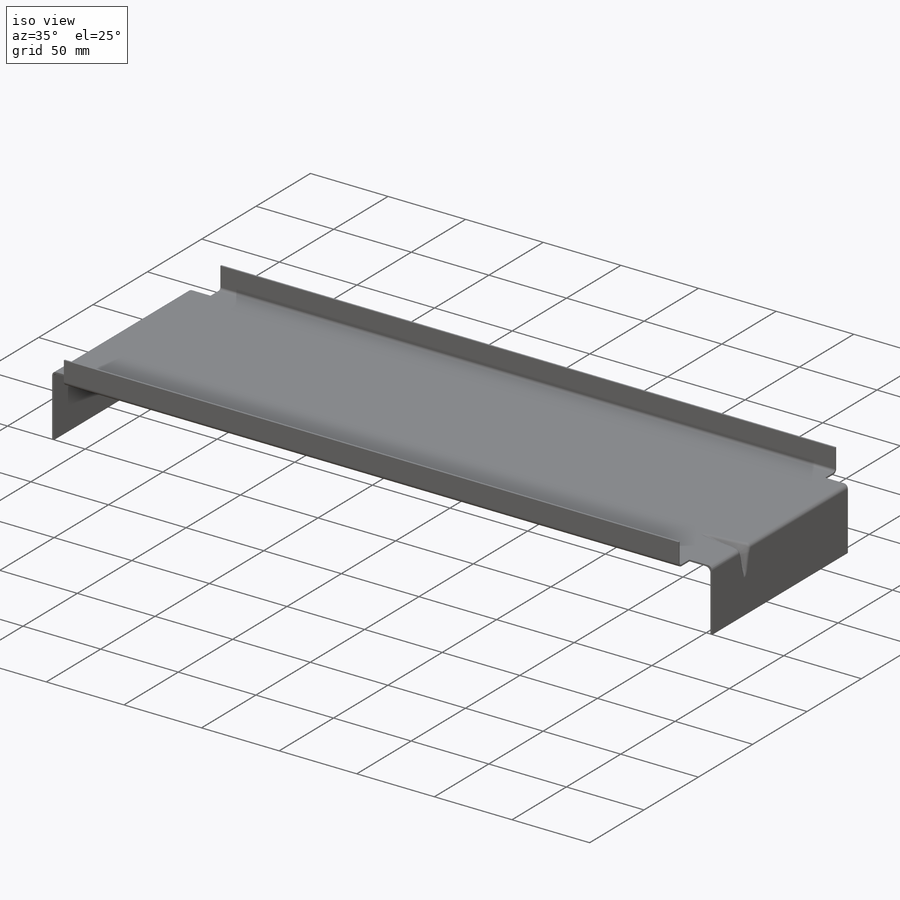
[diagram: iso view]
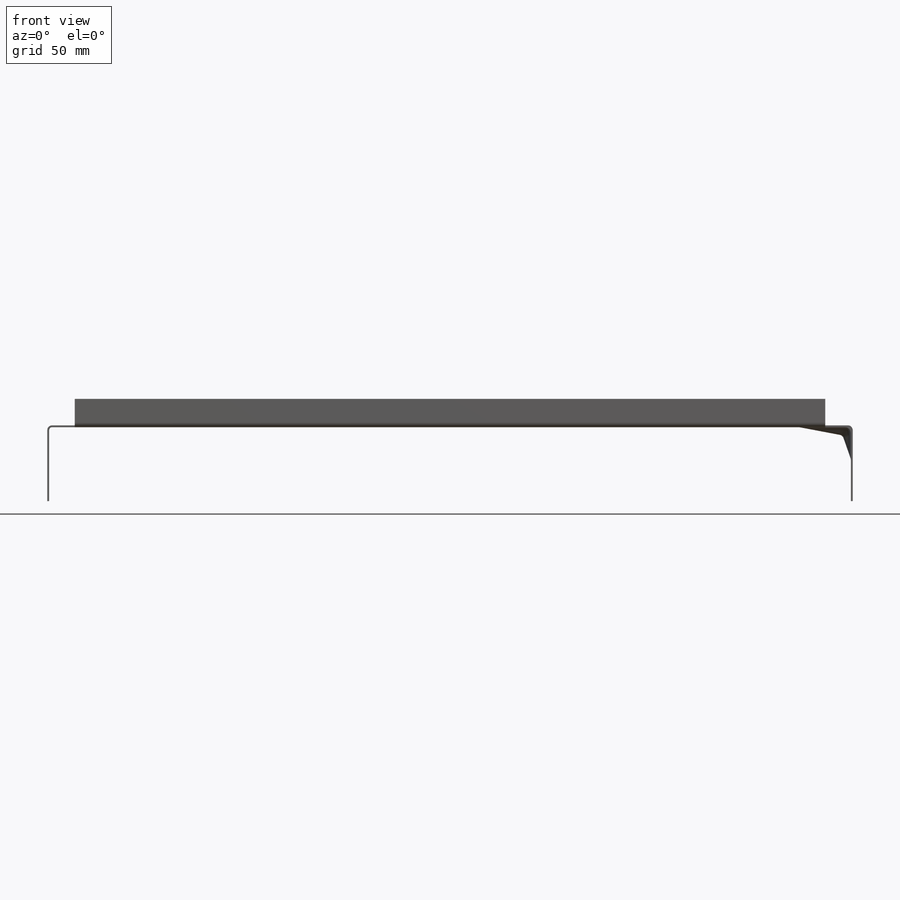
[diagram: front view]
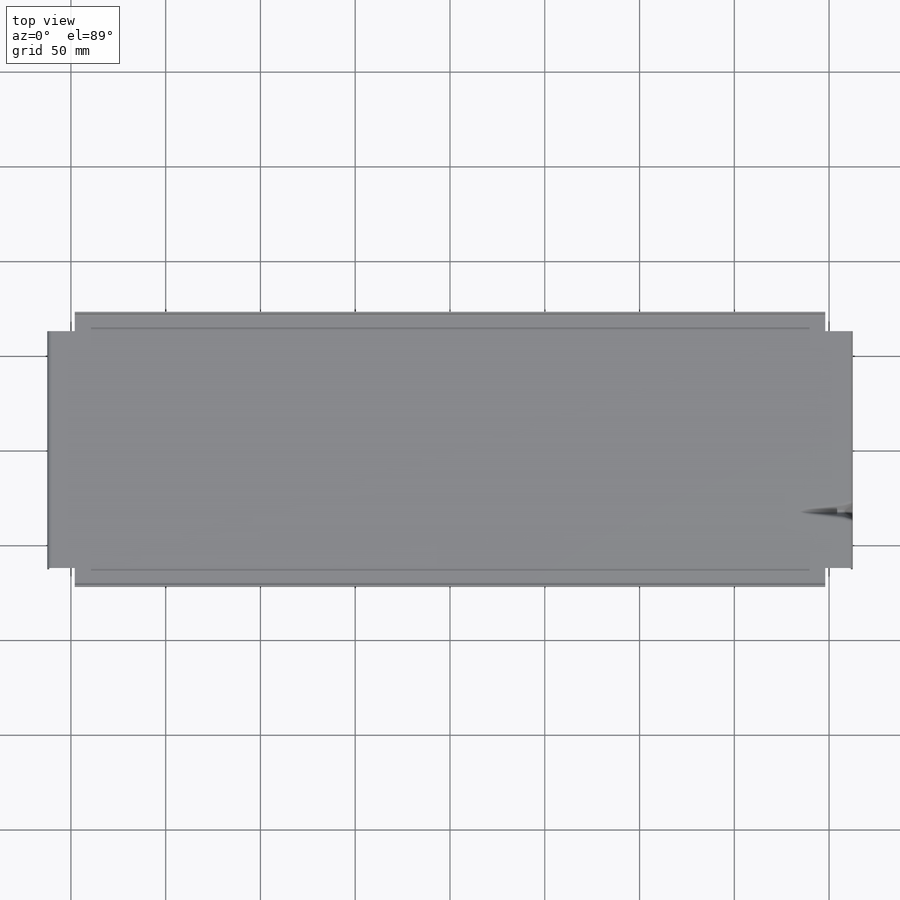
[diagram: top view]
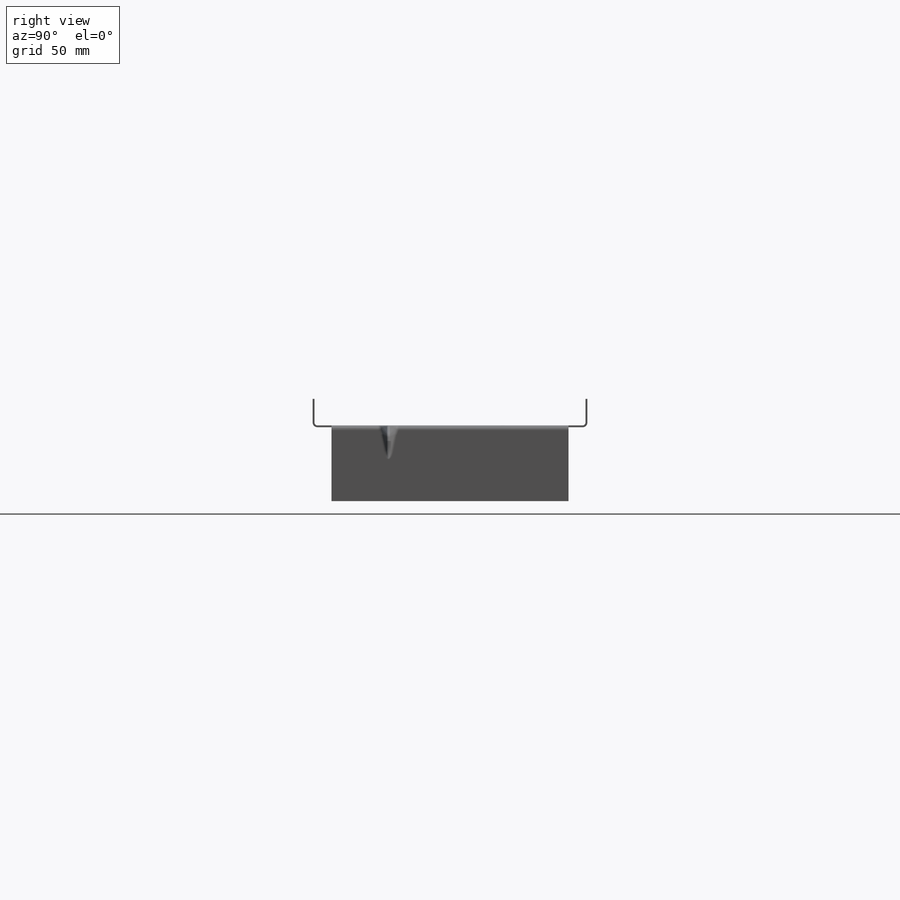
[diagram: right view]
SOLIDWORKS PART (.sldprt)
format: sldprt  version: not decoded by parser v0  size: 436,736 bytes
history: native  units: mm
features: plane x5, sketch x4, fillet x3, material x1, mirror x1 (+9 scaffold rows collapsed)
feature tree (23):
  scaffold x9  (default folders/planes/origin — collapsed)
  material  "Material <nicht festgelegt>"
  plane  "Ebene vorne"
  plane  "Ebene oben"
  plane  "Ebene rechts"
  sketch  "Skizze1"  dims[c1.D5=1.5mm c1.D1=211.5mm c1.D2=211.5mm c1.D3=39.0mm c1.D4=39.0mm c2.D1=125.0mm c2.D5=1.0mm c2.D6=10.0mm c2.D7=5.0mm]
  sketch  "Skizze2"  dims[c1.D1=14.0mm c1.D2=9.0mm c2.D1=396.0mm c2.D5=1.0mm c2.D6=10.0mm c2.D7=5.0mm]
  mirror  "Spiegeln1"
  plane  "Ebene1"  Offset=180mm
  sketch  "Skizze3"  dims[c1.D4=1.0mm c1.D1=32.5mm c1.D2=~27.06584mm c2.D2=32.5deg c2.D3=~27.06584mm c3.D3=32.5deg c3.D5=7.5mm]
  plane  "Ebene2"  Offset=32.5mm
  sketch  "Skizze4"  dims[c1.D2=5.0mm c1.D1=37.5mm c2.D1=135.0deg c2.D3=~21.468317mm c3.D3=120.0deg c3.D4=12.0mm c4.D4=~10.71472deg c5.D4=37.5mm c6.D4=~19.28528deg c7.D4=~20.315357mm c7.D5=~2.417742mm c7.D1=1.0mm c7.D2=0.0mm]
  fillet  "Verrundung5"  Radius=2mm
  fillet  "Verrundung7"  Radius=3mm
  fillet  "Verrundung8"  Radius=3mm
decode coverage: 7 of 8 modeling features carry decoded parameters
note: ~ marks probable driven/reference dimensions
note: suppression state not decoded; provenance and decode notes live in map.json
